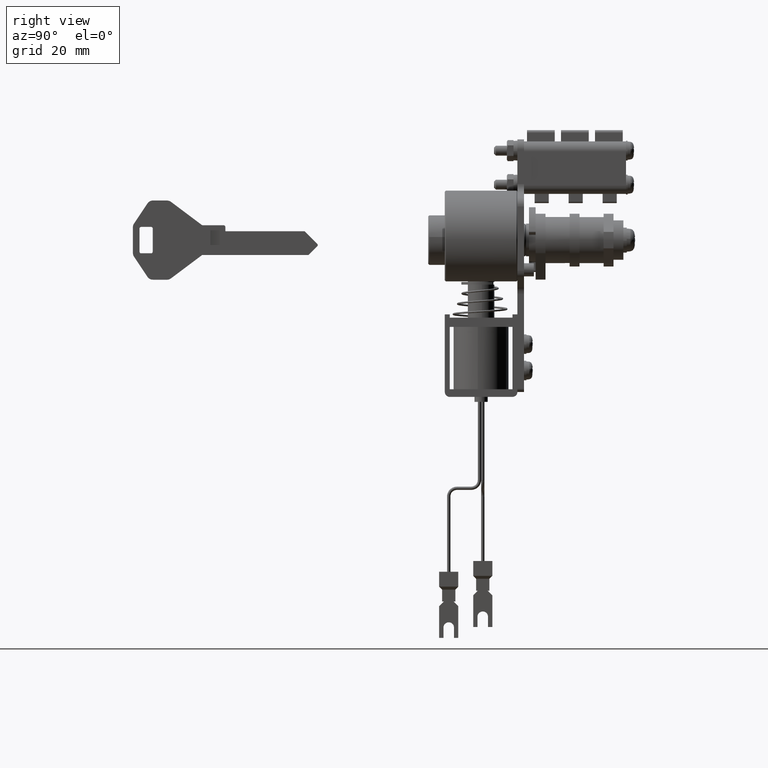
[diagram: clean part render]
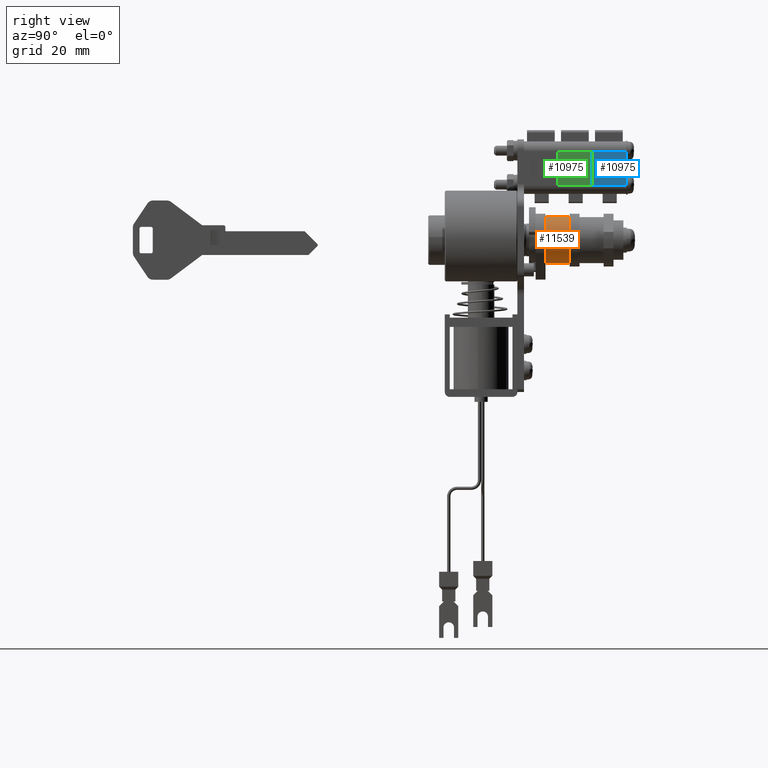
[diagram: same view with three faces highlighted in distinct colors, each labeled with its STEP entity id]
A machine part, right view with three faces highlighted in distinct colors.
Their STEP definitions:

[orange] entity #11539 — the highlighted face is a freeform B-spline surface patch.
#11441=CARTESIAN_POINT('',(42.982500000000002,6.945863496778769,-0.868896014558805));
#11442=CARTESIAN_POINT('',(42.982499999999995,6.172118806932546,-7.054129813517112));
#11443=CARTESIAN_POINT('',(42.982500000000002,-0.061085748488617,-6.999733461449196));
#11444=CARTESIAN_POINT('',(42.982500000000002,-7.060819209937813,-6.938647712960579));
#11445=CARTESIAN_POINT('',(42.982500000000002,-6.999733461449196,0.061085748488617));
#11446=CARTESIAN_POINT('',(35.312937499999997,6.945863496778769,-0.868896014558805));
#11447=CARTESIAN_POINT('',(35.312937499999997,6.172118806932546,-7.054129813517112));
#11448=CARTESIAN_POINT('',(35.312937499999990,-0.061085748488617,-6.999733461449196));
#11449=CARTESIAN_POINT('',(35.312937499999983,-7.060819209937813,-6.938647712960579));
#11450=CARTESIAN_POINT('',(35.312937499999990,-6.999733461449196,0.061085748488617));
#11458=(BOUNDED_SURFACE()B_SPLINE_SURFACE(2,1,((#11441,#11446),(#11442,#11447),(#11443,#11448),(#11444,#11449),(#11445,#11450)),.UNSPECIFIED.,.F.,.F.,.U.)B_SPLINE_SURFACE_WITH_KNOTS((3,2,3),(2,2),(0.0,10.670141366730920,22.268121113177578),(0.0,7.669562500000012),.UNSPECIFIED.)GEOMETRIC_REPRESENTATION_ITEM()RATIONAL_B_SPLINE_SURFACE(((0.956886118190660,0.956886118190660),(0.730538238691624,0.730538238691624),(1.0,1.0),(0.707106781186548,0.707106781186548),(1.0,1.0)))REPRESENTATION_ITEM('')SURFACE());
#11459=CARTESIAN_POINT('',(42.799999999999997,0.0,-7.0));
#11460=VERTEX_POINT('',#11459);
#11461=CARTESIAN_POINT('',(42.799999999999997,6.945863496756804,-0.868896014734397));
#11462=VERTEX_POINT('',#11461);
#11463=CARTESIAN_POINT('',(42.799999999999997,0.0,-7.0));
#11464=CARTESIAN_POINT('',(42.799999999999990,6.178890200736759,-6.999999999999998));
#11465=CARTESIAN_POINT('',(42.799999999999997,6.945863496756805,-0.868896014734397));
#11473=(BOUNDED_CURVE()B_SPLINE_CURVE(2,(#11463,#11464,#11465),.UNSPECIFIED.,.F.,.U.)B_SPLINE_CURVE_WITH_KNOTS((3,3),(0.0,0.228526071020772),.UNSPECIFIED.)CURVE()GEOMETRIC_REPRESENTATION_ITEM()RATIONAL_B_SPLINE_CURVE((1.0,0.732265053903738,0.954005430258171))REPRESENTATION_ITEM(''));
#11474=EDGE_CURVE('',#11460,#11462,#11473,.T.);
#11475=ORIENTED_EDGE('',*,*,#11474,.F.);
#11476=CARTESIAN_POINT('',(42.799999999999997,-6.999733461445290,0.061085748936374));
#11477=VERTEX_POINT('',#11476);
#11478=CARTESIAN_POINT('',(42.799999999999997,-6.999733461445290,0.061085748936374));
#11479=CARTESIAN_POINT('',(42.799999999999997,-7.0,0.030543456192693));
#11480=CARTESIAN_POINT('',(42.799999999999997,-7.0,0.0));
#11481=CARTESIAN_POINT('',(42.799999999999997,-6.999999999999999,-6.999999999999999));
#11482=CARTESIAN_POINT('',(42.799999999999997,0.0,-7.0));
#11490=(BOUNDED_CURVE()B_SPLINE_CURVE(2,(#11478,#11479,#11480,#11481,#11482),.UNSPECIFIED.,.F.,.U.)B_SPLINE_CURVE_WITH_KNOTS((3,2,3),(0.748460105642478,0.750000000000000,1.0),.UNSPECIFIED.)CURVE()GEOMETRIC_REPRESENTATION_ITEM()RATIONAL_B_SPLINE_CURVE((0.996414028048254,0.998195901539971,1.0,0.707106781186547,1.0))REPRESENTATION_ITEM(''));
#11491=EDGE_CURVE('',#11477,#11460,#11490,.T.);
#11492=ORIENTED_EDGE('',*,*,#11491,.F.);
#11493=CARTESIAN_POINT('',(35.500000000000000,-6.999733461445010,0.061085748968404));
#11494=VERTEX_POINT('',#11493);
#11495=CARTESIAN_POINT('',(42.799999999999997,-6.999733461445290,0.061085748936374));
#11496=CARTESIAN_POINT('',(35.500000000000000,-6.999733461445010,0.061085748968404));
#11497=QUASI_UNIFORM_CURVE('',1,(#11495,#11496),.UNSPECIFIED.,.F.,.U.);
#11498=EDGE_CURVE('',#11477,#11494,#11497,.T.);
#11499=ORIENTED_EDGE('',*,*,#11498,.T.);
#11500=CARTESIAN_POINT('',(35.500000000000000,0.0,-7.0));
#11501=VERTEX_POINT('',#11500);
#11502=CARTESIAN_POINT('',(35.500000000000000,0.0,-7.0));
#11503=CARTESIAN_POINT('',(35.499999999999993,-6.999999999999999,-6.999999999999999));
#11504=CARTESIAN_POINT('',(35.500000000000000,-7.0,0.0));
#11505=CARTESIAN_POINT('',(35.500000000000007,-7.0,0.030543456224725));
#11506=CARTESIAN_POINT('',(35.500000000000007,-6.999733461445010,0.061085748968404));
#11514=(BOUNDED_CURVE()B_SPLINE_CURVE(2,(#11502,#11503,#11504,#11505,#11506),.UNSPECIFIED.,.F.,.U.)B_SPLINE_CURVE_WITH_KNOTS((3,2,3),(0.500000000000000,0.750000000000000,0.751539894359134),.UNSPECIFIED.)CURVE()GEOMETRIC_REPRESENTATION_ITEM()RATIONAL_B_SPLINE_CURVE((1.0,0.707106781186547,1.0,0.998195901538082,0.996414028044523))REPRESENTATION_ITEM(''));
#11515=EDGE_CURVE('',#11501,#11494,#11514,.T.);
#11516=ORIENTED_EDGE('',*,*,#11515,.F.);
#11517=CARTESIAN_POINT('',(35.500000000000000,6.945863496770283,-0.868896014626656));
#11518=VERTEX_POINT('',#11517);
#11519=CARTESIAN_POINT('',(35.500000000000000,6.945863496770283,-0.868896014626656));
#11520=CARTESIAN_POINT('',(35.499999999999993,6.178890200929943,-6.999999999999999));
#11521=CARTESIAN_POINT('',(35.500000000000000,0.0,-7.0));
#11529=(BOUNDED_CURVE()B_SPLINE_CURVE(2,(#11519,#11520,#11521),.UNSPECIFIED.,.F.,.U.)B_SPLINE_CURVE_WITH_KNOTS((3,3),(0.271473928973996,0.500000000000000),.UNSPECIFIED.)CURVE()GEOMETRIC_REPRESENTATION_ITEM()RATIONAL_B_SPLINE_CURVE((0.954005430268325,0.732265053897608,1.0))REPRESENTATION_ITEM(''));
#11530=EDGE_CURVE('',#11518,#11501,#11529,.T.);
#11531=ORIENTED_EDGE('',*,*,#11530,.F.);
#11532=CARTESIAN_POINT('',(42.799999999999997,6.945863496756804,-0.868896014734397));
#11533=CARTESIAN_POINT('',(35.500000000000000,6.945863496770283,-0.868896014626656));
#11534=QUASI_UNIFORM_CURVE('',1,(#11532,#11533),.UNSPECIFIED.,.F.,.U.);
#11535=EDGE_CURVE('',#11462,#11518,#11534,.T.);
#11536=ORIENTED_EDGE('',*,*,#11535,.F.);
#11537=EDGE_LOOP('',(#11475,#11492,#11499,#11516,#11531,#11536));
#11538=FACE_OUTER_BOUND('',#11537,.T.);
#11539=ADVANCED_FACE('',(#11538),#11458,.T.);

[blue] entity #10975 — the highlighted face is a freeform B-spline surface patch.
#10773=CARTESIAN_POINT('',(29.0,-4.800000000000000,16.500000000000000));
#10774=VERTEX_POINT('',#10773);
#10788=CARTESIAN_POINT('',(29.0,-4.799999999999900,26.899999999999999));
#10789=VERTEX_POINT('',#10788);
#10790=CARTESIAN_POINT('',(29.0,-4.800000000000000,16.500000000000000));
#10791=CARTESIAN_POINT('',(29.0,-4.799999999999900,26.899999999999999));
#10792=QUASI_UNIFORM_CURVE('',1,(#10790,#10791),.UNSPECIFIED.,.F.,.U.);
#10793=EDGE_CURVE('',#10774,#10789,#10792,.T.);
#10837=CARTESIAN_POINT('',(39.299999999999997,-4.799999999999900,26.899999999999999));
#10838=VERTEX_POINT('',#10837);
#10852=CARTESIAN_POINT('',(39.299999999999997,-4.800000000000000,16.500000000000000));
#10853=VERTEX_POINT('',#10852);
#10854=CARTESIAN_POINT('',(39.299999999999997,-4.800000000000000,16.500000000000000));
#10855=CARTESIAN_POINT('',(39.299999999999997,-4.799999999999900,26.899999999999999));
#10856=QUASI_UNIFORM_CURVE('',1,(#10854,#10855),.UNSPECIFIED.,.F.,.U.);
#10857=EDGE_CURVE('',#10853,#10838,#10856,.T.);
#10946=CARTESIAN_POINT('',(39.299999999999997,-4.799999999999900,26.899999999999999));
#10947=CARTESIAN_POINT('',(29.0,-4.799999999999900,26.899999999999999));
#10948=QUASI_UNIFORM_CURVE('',1,(#10946,#10947),.UNSPECIFIED.,.F.,.U.);
#10949=EDGE_CURVE('',#10838,#10789,#10948,.T.);
#10960=CARTESIAN_POINT('',(28.485515056762232,-4.799999999999900,27.419479589331750));
#10961=CARTESIAN_POINT('',(28.485515056762232,-4.799999999999900,15.980519759785530));
#10962=CARTESIAN_POINT('',(39.814484482791897,-4.799999999999900,27.419479589331761));
#10963=CARTESIAN_POINT('',(39.814484482791897,-4.799999999999900,15.980519759785530));
#10964=B_SPLINE_SURFACE_WITH_KNOTS('',1,1,((#10960,#10962),(#10961,#10963)),.UNSPECIFIED.,.F.,.F.,.U.,(2,2),(2,2),(0.0,11.438959829546221),(0.0,11.328969426029669),.UNSPECIFIED.);
#10965=ORIENTED_EDGE('',*,*,#10793,.F.);
#10966=CARTESIAN_POINT('',(39.299999999999997,-4.800000000000000,16.500000000000000));
#10967=CARTESIAN_POINT('',(29.0,-4.800000000000000,16.500000000000000));
#10968=QUASI_UNIFORM_CURVE('',1,(#10966,#10967),.UNSPECIFIED.,.F.,.U.);
#10969=EDGE_CURVE('',#10853,#10774,#10968,.T.);
#10970=ORIENTED_EDGE('',*,*,#10969,.F.);
#10971=ORIENTED_EDGE('',*,*,#10857,.T.);
#10972=ORIENTED_EDGE('',*,*,#10949,.T.);
#10973=EDGE_LOOP('',(#10965,#10970,#10971,#10972));
#10974=FACE_OUTER_BOUND('',#10973,.T.);
#10975=ADVANCED_FACE('',(#10974),#10964,.T.);

[green] entity #10975 — the highlighted face is a freeform B-spline surface patch.
#10773=CARTESIAN_POINT('',(29.0,-4.800000000000000,16.500000000000000));
#10774=VERTEX_POINT('',#10773);
#10788=CARTESIAN_POINT('',(29.0,-4.799999999999900,26.899999999999999));
#10789=VERTEX_POINT('',#10788);
#10790=CARTESIAN_POINT('',(29.0,-4.800000000000000,16.500000000000000));
#10791=CARTESIAN_POINT('',(29.0,-4.799999999999900,26.899999999999999));
#10792=QUASI_UNIFORM_CURVE('',1,(#10790,#10791),.UNSPECIFIED.,.F.,.U.);
#10793=EDGE_CURVE('',#10774,#10789,#10792,.T.);
#10837=CARTESIAN_POINT('',(39.299999999999997,-4.799999999999900,26.899999999999999));
#10838=VERTEX_POINT('',#10837);
#10852=CARTESIAN_POINT('',(39.299999999999997,-4.800000000000000,16.500000000000000));
#10853=VERTEX_POINT('',#10852);
#10854=CARTESIAN_POINT('',(39.299999999999997,-4.800000000000000,16.500000000000000));
#10855=CARTESIAN_POINT('',(39.299999999999997,-4.799999999999900,26.899999999999999));
#10856=QUASI_UNIFORM_CURVE('',1,(#10854,#10855),.UNSPECIFIED.,.F.,.U.);
#10857=EDGE_CURVE('',#10853,#10838,#10856,.T.);
#10946=CARTESIAN_POINT('',(39.299999999999997,-4.799999999999900,26.899999999999999));
#10947=CARTESIAN_POINT('',(29.0,-4.799999999999900,26.899999999999999));
#10948=QUASI_UNIFORM_CURVE('',1,(#10946,#10947),.UNSPECIFIED.,.F.,.U.);
#10949=EDGE_CURVE('',#10838,#10789,#10948,.T.);
#10960=CARTESIAN_POINT('',(28.485515056762232,-4.799999999999900,27.419479589331750));
#10961=CARTESIAN_POINT('',(28.485515056762232,-4.799999999999900,15.980519759785530));
#10962=CARTESIAN_POINT('',(39.814484482791897,-4.799999999999900,27.419479589331761));
#10963=CARTESIAN_POINT('',(39.814484482791897,-4.799999999999900,15.980519759785530));
#10964=B_SPLINE_SURFACE_WITH_KNOTS('',1,1,((#10960,#10962),(#10961,#10963)),.UNSPECIFIED.,.F.,.F.,.U.,(2,2),(2,2),(0.0,11.438959829546221),(0.0,11.328969426029669),.UNSPECIFIED.);
#10965=ORIENTED_EDGE('',*,*,#10793,.F.);
#10966=CARTESIAN_POINT('',(39.299999999999997,-4.800000000000000,16.500000000000000));
#10967=CARTESIAN_POINT('',(29.0,-4.800000000000000,16.500000000000000));
#10968=QUASI_UNIFORM_CURVE('',1,(#10966,#10967),.UNSPECIFIED.,.F.,.U.);
#10969=EDGE_CURVE('',#10853,#10774,#10968,.T.);
#10970=ORIENTED_EDGE('',*,*,#10969,.F.);
#10971=ORIENTED_EDGE('',*,*,#10857,.T.);
#10972=ORIENTED_EDGE('',*,*,#10949,.T.);
#10973=EDGE_LOOP('',(#10965,#10970,#10971,#10972));
#10974=FACE_OUTER_BOUND('',#10973,.T.);
#10975=ADVANCED_FACE('',(#10974),#10964,.T.);